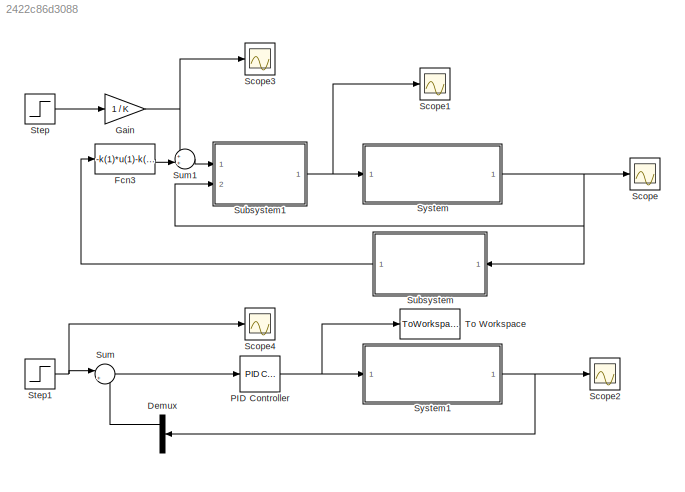
MODEL slx_2422c86d3088
KIND model
CONFIG AbsTol = auto
CONFIG EnableMultiTasking = off
CONFIG FixedStep = 0.001
CONFIG MaxStep = auto
CONFIG MinStep = auto
CONFIG RelTol = 1e-3
CONFIG SampleTimeConstraint = Unconstrained
CONFIG Solver = FixedStepAuto
CONFIG SolverName = FixedStepAuto
CONFIG StartTime = 0.0
CONFIG StopTime = Tsim
BLOCK [Demux] Demux
  DisplayOption = bar
  Outputs = 3
  Ports = [1, 3]
BLOCK [Fcn] Fcn3
  Expr = -k(1)*u(1)-k(2)*u(2)-k(3)*u(3)
BLOCK [Gain] Gain
  Gain = 1 / K
  OutDataTypeStr = Inherit: Inherit via internal rule
  ParamDataTypeStr = Inherit: Inherit via internal rule
  SaturateOnIntegerOverflow = off
BLOCK [Reference] PID Controller  REF=simulink/Continuous/PID Controller
  Ports = [1, 1]
  SourceBlock = simulink/Continuous/PID Controller
  SourceProductBaseCode = SL
  SourceProductName = Simulink
  SourceType = PID 1dof
BLOCK [Scope] Scope
  Floating = off
  NumInputPorts = 1
  Ports = [1]
  ScopeSpecificationString = Simulink.scopes.TimeScopeBlockCfg('CurrentConfiguration', extmgr.ConfigurationSet(extmgr.Configuration('Core','General UI',true),extmgr.Configuration('Core','Source UI',true),extmgr.Configuration('Sources','WiredSimulink',true,'DataLogging',true,'DataLoggingSaveFormat','StructureWithTime'),extmgr.Configuration('Visuals','Time Domain',true,'SerializedDisplays',{struct('MinYLimReal','-11.60783','Max...<+1488ch>
BLOCK [Scope] Scope1
  Floating = off
  NumInputPorts = 1
  Ports = [1]
  ScopeSpecificationString = Simulink.scopes.TimeScopeBlockCfg('CurrentConfiguration', extmgr.ConfigurationSet(extmgr.Configuration('Core','General UI',true),extmgr.Configuration('Core','Source UI',true),extmgr.Configuration('Sources','WiredSimulink',true,'DataLoggingVariableName','u','DataLogging',true,'DataLoggingSaveFormat','StructureWithTime'),extmgr.Configuration('Visuals','Time Domain',true,'SerializedDisplays',{struct(...<+1492ch>
BLOCK [Scope] Scope2
  Floating = off
  NumInputPorts = 1
  Ports = [1]
  ScopeSpecificationString = Simulink.scopes.TimeScopeBlockCfg('CurrentConfiguration', extmgr.ConfigurationSet(extmgr.Configuration('Core','General UI',true),extmgr.Configuration('Core','Source UI',true),extmgr.Configuration('Sources','WiredSimulink',true,'DataLoggingVariableName','ScopeData2','DataLogging',true,'DataLoggingSaveFormat','StructureWithTime'),extmgr.Configuration('Visuals','Time Domain',true,'SerializedDisplays'...<+1528ch>
BLOCK [Scope] Scope3
  Floating = off
  NumInputPorts = 1
  Ports = [1]
  ScopeSpecificationString = Simulink.scopes.TimeScopeBlockCfg('CurrentConfiguration', extmgr.ConfigurationSet(extmgr.Configuration('Core','General UI',true),extmgr.Configuration('Core','Source UI',true),extmgr.Configuration('Sources','WiredSimulink',true,'DataLoggingVariableName','r','DataLogging',true,'DataLoggingSaveFormat','StructureWithTime'),extmgr.Configuration('Visuals','Time Domain',true,'SerializedDisplays',{struct(...<+1486ch>
BLOCK [Scope] Scope4
  Floating = off
  NumInputPorts = 1
  Ports = [1]
  ScopeSpecificationString = Simulink.scopes.TimeScopeBlockCfg('CurrentConfiguration', extmgr.ConfigurationSet(extmgr.Configuration('Core','General UI',true),extmgr.Configuration('Core','Source UI',true),extmgr.Configuration('Sources','WiredSimulink',true,'DataLoggingVariableName','ScopeData10','DataLogging',true,'DataLoggingSaveFormat','StructureWithTime'),extmgr.Configuration('Visuals','Time Domain',true,'SerializedDisplays...<+1497ch>
BLOCK [Step] Step
  After = 10
  SampleTime = 0
  Time = 0
BLOCK [Step] Step1
  After = pidW
  SampleTime = 0
  Time = 0
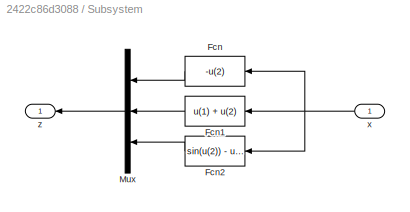
BLOCK [SubSystem] Subsystem
  Ports = [1, 1]
  RequestExecContextInheritance = off
BLOCK [Fcn] Subsystem/Fcn
  Expr = -u(2)
BLOCK [Fcn] Subsystem/Fcn1
  Expr = u(1) + u(2)
BLOCK [Fcn] Subsystem/Fcn2
  Expr = sin(u(2)) - u(3)
BLOCK [Mux] Subsystem/Mux
  DisplayOption = bar
  Inputs = 3
  Ports = [3, 1]
BLOCK [Inport] Subsystem/x
  IconDisplay = Port number
BLOCK [Outport] Subsystem/z
  IconDisplay = Port number
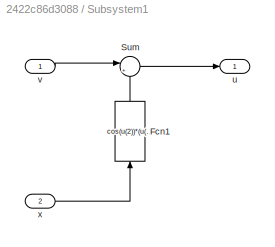
BLOCK [SubSystem] Subsystem1
  Ports = [2, 1]
  RequestExecContextInheritance = off
BLOCK [Fcn] Subsystem1/Fcn1
  Expr = cos(u(2))*(u(1) + u(2) - u(3) + sin(u(2)))
BLOCK [Sum] Subsystem1/Sum
  IconShape = round
  InputSameDT = off
  Inputs = |++
  OutDataTypeStr = Inherit: Inherit via internal rule
  Ports = [2, 1]
  SaturateOnIntegerOverflow = off
BLOCK [Outport] Subsystem1/u
  IconDisplay = Port number
BLOCK [Inport] Subsystem1/v
  IconDisplay = Port number
BLOCK [Inport] Subsystem1/x
  IconDisplay = Port number
  Port = 2
BLOCK [Sum] Sum
  IconShape = round
  InputSameDT = off
  Inputs = |+-
  OutDataTypeStr = Inherit: Inherit via internal rule
  Ports = [2, 1]
  SaturateOnIntegerOverflow = off
BLOCK [Sum] Sum1
  IconShape = round
  InputSameDT = off
  Inputs = ++|
  OutDataTypeStr = Inherit: Inherit via internal rule
  Ports = [2, 1]
  SaturateOnIntegerOverflow = off
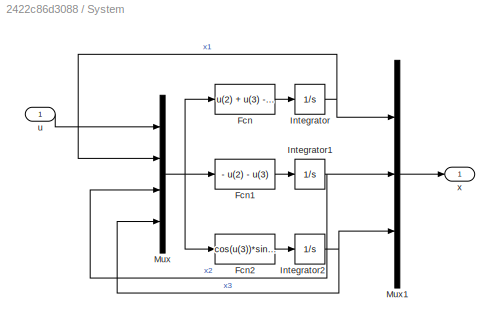
BLOCK [SubSystem] System
  Ports = [1, 1]
  RequestExecContextInheritance = off
BLOCK [Fcn] System/Fcn
  Expr = u(2) + u(3) - u(4) + sin(u(3))
BLOCK [Fcn] System/Fcn1
  Expr = - u(2) - u(3)
BLOCK [Fcn] System/Fcn2
  Expr = cos(u(3))*sin(u(3)) - u(1) - u(4)*cos(u(3))
BLOCK [Integrator] System/Integrator
  Ports = [1, 1]
BLOCK [Integrator] System/Integrator1
  Ports = [1, 1]
BLOCK [Integrator] System/Integrator2
  Ports = [1, 1]
BLOCK [Mux] System/Mux
  DisplayOption = bar
  Ports = [4, 1]
BLOCK [Mux] System/Mux1
  DisplayOption = bar
  Inputs = 3
  Ports = [3, 1]
BLOCK [Inport] System/u
  IconDisplay = Port number
BLOCK [Outport] System/x
  IconDisplay = Port number
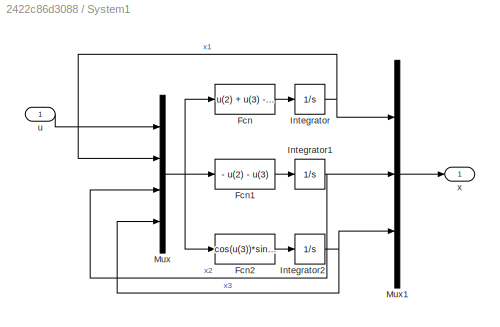
BLOCK [SubSystem] System1
  Ports = [1, 1]
  RequestExecContextInheritance = off
BLOCK [Fcn] System1/Fcn
  Expr = u(2) + u(3) - u(4) + sin(u(3))
BLOCK [Fcn] System1/Fcn1
  Expr = - u(2) - u(3)
BLOCK [Fcn] System1/Fcn2
  Expr = cos(u(3))*sin(u(3)) - u(1) - u(4)*cos(u(3))
BLOCK [Integrator] System1/Integrator
  Ports = [1, 1]
BLOCK [Integrator] System1/Integrator1
  Ports = [1, 1]
BLOCK [Integrator] System1/Integrator2
  Ports = [1, 1]
BLOCK [Mux] System1/Mux
  DisplayOption = bar
  Ports = [4, 1]
BLOCK [Mux] System1/Mux1
  DisplayOption = bar
  Inputs = 3
  Ports = [3, 1]
BLOCK [Inport] System1/u
  IconDisplay = Port number
BLOCK [Outport] System1/x
  IconDisplay = Port number
BLOCK [ToWorkspace] To Workspace
  FixptAsFi = on
  MaxDataPoints = inf
  Ports = [1]
  SampleTime = -1
  Save2DSignal = 3-D array (concatenate along third dimension)
  SaveFormat = Timeseries
  VariableName = pidu
LINE Demux:1 -> Sum:2
LINE Fcn3:1 -> Sum1:2
NET Gain:1 -> Scope3:1, Sum1:1
NET PID Controller:1 -> System1:1, To Workspace:1
NET Step1:1 -> Scope4:1, Sum:1
LINE Step:1 -> Gain:1
LINE Subsystem/Fcn1:1 -> Subsystem/Mux:2
LINE Subsystem/Fcn2:1 -> Subsystem/Mux:3
LINE Subsystem/Fcn:1 -> Subsystem/Mux:1
LINE Subsystem/Mux:1 -> Subsystem/z:1
NET Subsystem/x:1 -> Subsystem/Fcn1:1, Subsystem/Fcn2:1, Subsystem/Fcn:1
LINE Subsystem1/Fcn1:1 -> Subsystem1/Sum:2
LINE Subsystem1/Sum:1 -> Subsystem1/u:1
LINE Subsystem1/v:1 -> Subsystem1/Sum:1
LINE Subsystem1/x:1 -> Subsystem1/Fcn1:1
NET Subsystem1:1 -> Scope1:1, System:1
LINE Subsystem:1 -> Fcn3:1
LINE Sum1:1 -> Subsystem1:1
LINE Sum:1 -> PID Controller:1
LINE System/Fcn1:1 -> System/Integrator1:1
LINE System/Fcn2:1 -> System/Integrator2:1
LINE System/Fcn:1 -> System/Integrator:1
NET System/Integrator1:1 -> System/Mux1:2, System/Mux:3
NET System/Integrator2:1 -> System/Mux1:3, System/Mux:4
NET System/Integrator:1 -> System/Mux1:1, System/Mux:2
LINE System/Mux1:1 -> System/x:1
NET System/Mux:1 -> System/Fcn1:1, System/Fcn2:1, System/Fcn:1
LINE System/u:1 -> System/Mux:1
LINE System1/Fcn1:1 -> System1/Integrator1:1
LINE System1/Fcn2:1 -> System1/Integrator2:1
LINE System1/Fcn:1 -> System1/Integrator:1
NET System1/Integrator1:1 -> System1/Mux1:2, System1/Mux:3
NET System1/Integrator2:1 -> System1/Mux1:3, System1/Mux:4
NET System1/Integrator:1 -> System1/Mux1:1, System1/Mux:2
LINE System1/Mux1:1 -> System1/x:1
NET System1/Mux:1 -> System1/Fcn1:1, System1/Fcn2:1, System1/Fcn:1
LINE System1/u:1 -> System1/Mux:1
NET System1:1 -> Demux:1, Scope2:1
NET System:1 -> Scope:1, Subsystem1:2, Subsystem:1
note: NET lines group one-source signal fan-out (src -> all destinations, sorted); 1:1 wires keep LINE
